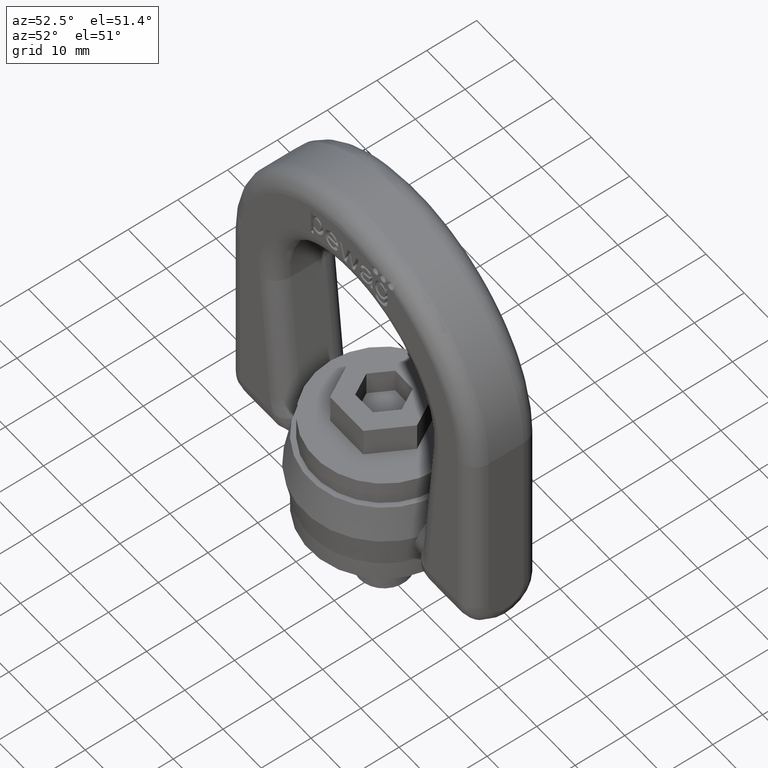
[diagram: clean part render]
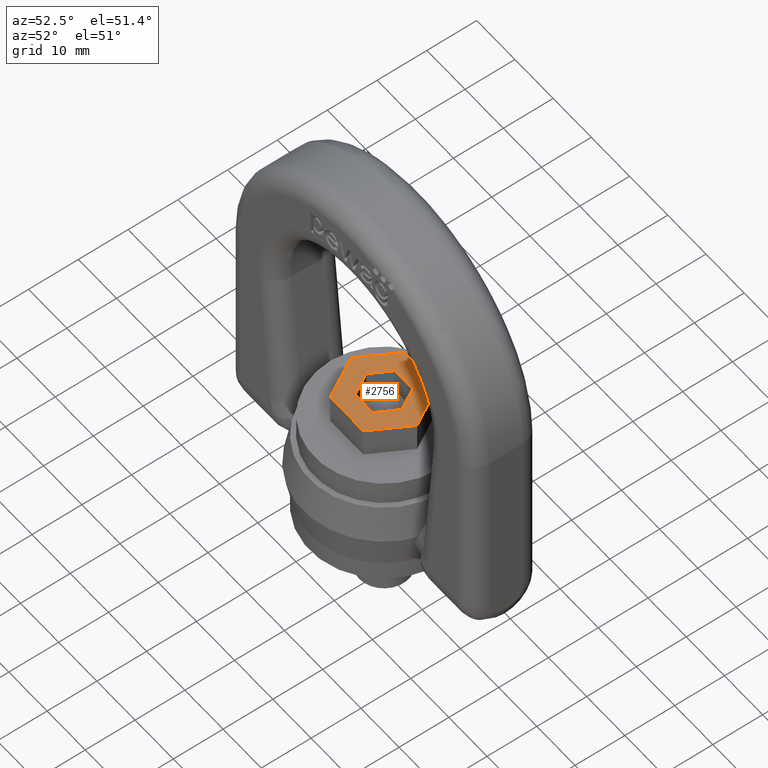
[diagram: same view with one face highlighted and labeled with its STEP entity id]
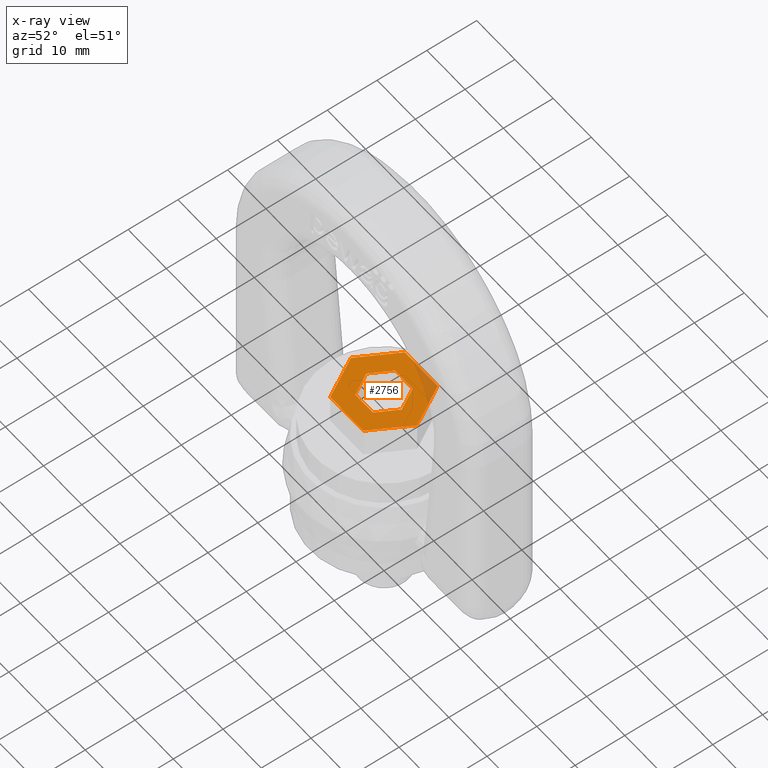
[diagram: x-ray of the same camera — body ghosted, the highlighted face saturated]
A machine part, auxiliary view. The second image highlights one B-rep face of the part: STEP entity #2756.
The next image is the same camera in x-ray: the body ghosted, the highlighted face saturated — about 8% of this face is hidden behind the body in this view.
In plain terms, the highlighted planar face has unit normal (0, 0, 1).
Its self-contained STEP definition (entity closure, byte-faithful):
#1764=LINE('',#6654,#2046);
#1767=LINE('',#6660,#2049);
#1769=LINE('',#6664,#2051);
#1771=LINE('',#6668,#2053);
#1773=LINE('',#6672,#2055);
#1774=LINE('',#6674,#2056);
#1775=LINE('',#6676,#2057);
#1776=LINE('',#6679,#2058);
#1777=LINE('',#6681,#2059);
#1778=LINE('',#6683,#2060);
#1779=LINE('',#6685,#2061);
#1780=LINE('',#6687,#2062);
#2046=VECTOR('',#5867,1.);
#2049=VECTOR('',#5872,1.);
#2051=VECTOR('',#5876,1.);
#2053=VECTOR('',#5880,1.);
#2055=VECTOR('',#5884,1.);
#2056=VECTOR('',#5887,1.);
#2057=VECTOR('',#5890,1.);
#2058=VECTOR('',#5891,1.);
#2059=VECTOR('',#5892,1.);
#2060=VECTOR('',#5893,1.);
#2061=VECTOR('',#5894,1.);
#2062=VECTOR('',#5895,1.);
#2637=PLANE('',#5639);
#2756=ADVANCED_FACE('',(#3019,#3020),#2637,.T.);
#3019=FACE_BOUND('',#3086,.T.);
#3020=FACE_BOUND('',#3087,.T.);
#3086=EDGE_LOOP('',(#3383,#3384,#3385,#3386,#3387,#3388));
#3087=EDGE_LOOP('',(#3389,#3390,#3391,#3392,#3393,#3394));
#3383=ORIENTED_EDGE('',*,*,#4977,.F.);
#3384=ORIENTED_EDGE('',*,*,#4978,.F.);
#3385=ORIENTED_EDGE('',*,*,#4979,.F.);
#3386=ORIENTED_EDGE('',*,*,#4980,.F.);
#3387=ORIENTED_EDGE('',*,*,#4981,.F.);
#3388=ORIENTED_EDGE('',*,*,#4982,.F.);
#3389=ORIENTED_EDGE('',*,*,#4966,.T.);
#3390=ORIENTED_EDGE('',*,*,#4969,.T.);
#3391=ORIENTED_EDGE('',*,*,#4971,.T.);
#3392=ORIENTED_EDGE('',*,*,#4973,.T.);
#3393=ORIENTED_EDGE('',*,*,#4975,.T.);
#3394=ORIENTED_EDGE('',*,*,#4976,.T.);
#4563=VERTEX_POINT('',#6653);
#4564=VERTEX_POINT('',#6655);
#4565=VERTEX_POINT('',#6659);
#4566=VERTEX_POINT('',#6663);
#4567=VERTEX_POINT('',#6667);
#4568=VERTEX_POINT('',#6671);
#4569=VERTEX_POINT('',#6677);
#4570=VERTEX_POINT('',#6678);
#4571=VERTEX_POINT('',#6680);
#4572=VERTEX_POINT('',#6682);
#4573=VERTEX_POINT('',#6684);
#4574=VERTEX_POINT('',#6686);
#4966=EDGE_CURVE('',#4564,#4563,#1764,.T.);
#4969=EDGE_CURVE('',#4563,#4565,#1767,.T.);
#4971=EDGE_CURVE('',#4565,#4566,#1769,.T.);
#4973=EDGE_CURVE('',#4566,#4567,#1771,.T.);
#4975=EDGE_CURVE('',#4567,#4568,#1773,.T.);
#4976=EDGE_CURVE('',#4568,#4564,#1774,.T.);
#4977=EDGE_CURVE('',#4569,#4570,#1775,.T.);
#4978=EDGE_CURVE('',#4571,#4569,#1776,.T.);
#4979=EDGE_CURVE('',#4572,#4571,#1777,.T.);
#4980=EDGE_CURVE('',#4573,#4572,#1778,.T.);
#4981=EDGE_CURVE('',#4574,#4573,#1779,.T.);
#4982=EDGE_CURVE('',#4570,#4574,#1780,.T.);
#5639=AXIS2_PLACEMENT_3D('',#6688,#5896,#5897);
#5867=DIRECTION('',(0.5,-0.866025403784438,0.));
#5872=DIRECTION('',(1.,0.,0.));
#5876=DIRECTION('',(0.5,0.866025403784438,0.));
#5880=DIRECTION('',(-0.5,0.866025403784438,0.));
#5884=DIRECTION('',(-1.,0.,0.));
#5887=DIRECTION('',(-0.5,-0.866025403784438,0.));
#5890=DIRECTION('',(0.5,-0.866025403784439,0.));
#5891=DIRECTION('',(-0.5,-0.866025403784439,0.));
#5892=DIRECTION('',(-1.,0.,0.));
#5893=DIRECTION('',(-0.5,0.866025403784439,0.));
#5894=DIRECTION('',(0.5,0.866025403784439,0.));
#5895=DIRECTION('',(1.,0.,0.));
#5896=DIRECTION('',(0.,0.,1.));
#5897=DIRECTION('',(1.,0.,0.));
#6653=CARTESIAN_POINT('',(-4.33012701892219,-7.5,29.));
#6654=CARTESIAN_POINT('',(-8.66025403784439,0.,29.));
#6655=CARTESIAN_POINT('',(-8.66025403784439,0.,29.));
#6659=CARTESIAN_POINT('',(4.33012701892219,-7.5,29.));
#6660=CARTESIAN_POINT('',(-4.33012701892219,-7.5,29.));
#6663=CARTESIAN_POINT('',(8.66025403784439,-8.67361737988404E-16,29.));
#6664=CARTESIAN_POINT('',(4.33012701892219,-7.5,29.));
#6667=CARTESIAN_POINT('',(4.33012701892219,7.5,29.));
#6668=CARTESIAN_POINT('',(8.66025403784439,0.,29.));
#6671=CARTESIAN_POINT('',(-4.33012701892219,7.5,29.));
#6672=CARTESIAN_POINT('',(4.33012701892219,7.5,29.));
#6674=CARTESIAN_POINT('',(-4.33012701892219,7.5,29.));
#6676=CARTESIAN_POINT('',(-4.618802153517,0.,29.));
#6677=CARTESIAN_POINT('',(-4.618802153517,0.,29.));
#6678=CARTESIAN_POINT('',(-2.3094010767585,-4.,29.));
#6679=CARTESIAN_POINT('',(-2.3094010767585,4.,29.));
#6680=CARTESIAN_POINT('',(-2.3094010767585,4.,29.));
#6681=CARTESIAN_POINT('',(2.3094010767585,4.,29.));
#6682=CARTESIAN_POINT('',(2.3094010767585,4.,29.));
#6683=CARTESIAN_POINT('',(4.618802153517,0.,29.));
#6684=CARTESIAN_POINT('',(4.618802153517,8.67361737988404E-16,29.));
#6685=CARTESIAN_POINT('',(2.3094010767585,-4.,29.));
#6686=CARTESIAN_POINT('',(2.3094010767585,-4.,29.));
#6687=CARTESIAN_POINT('',(-2.3094010767585,-4.,29.));
#6688=CARTESIAN_POINT('',(0.,0.,29.));